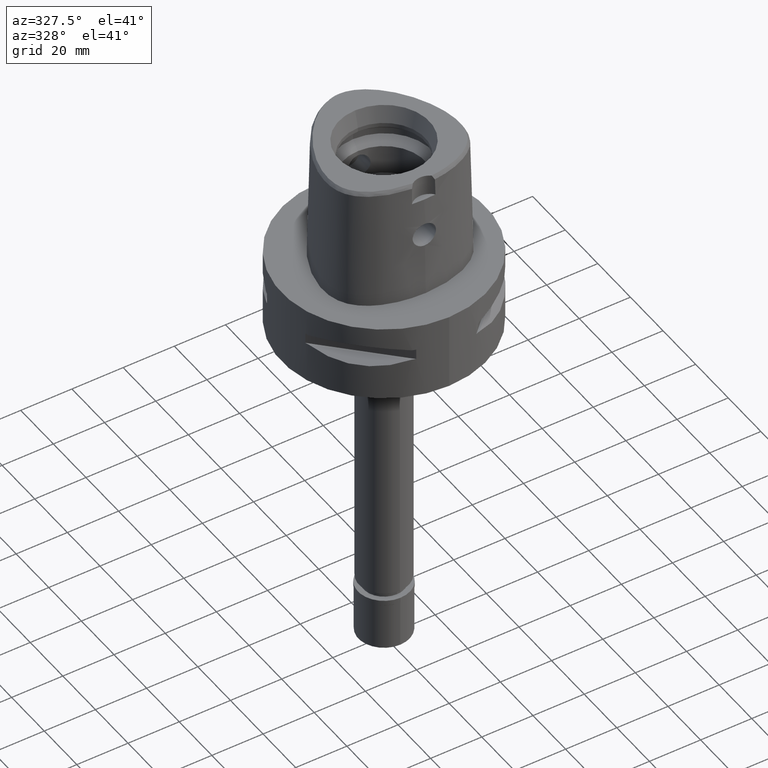
[diagram: clean part render]
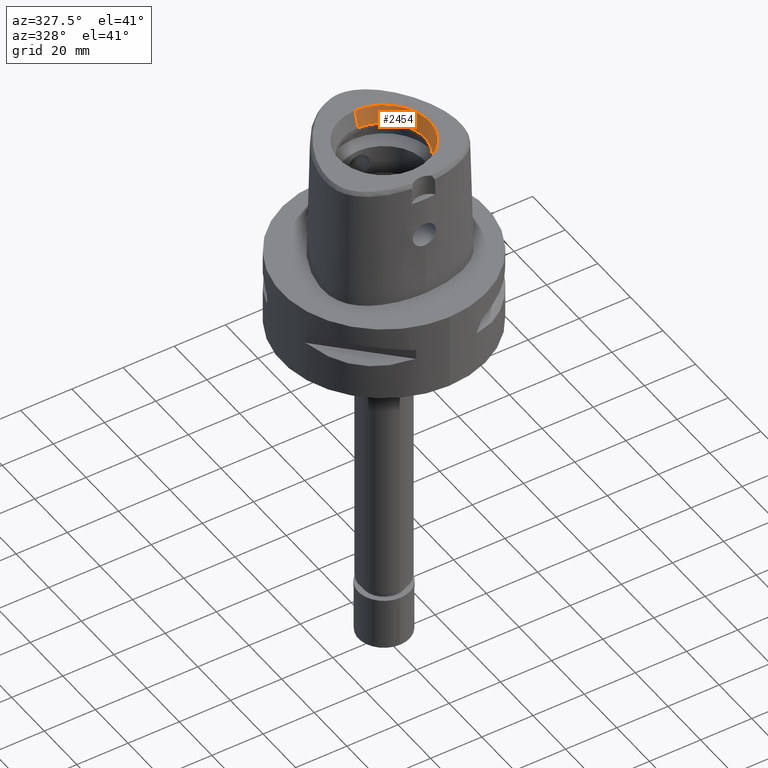
[diagram: same view with one face highlighted and labeled with its STEP entity id]
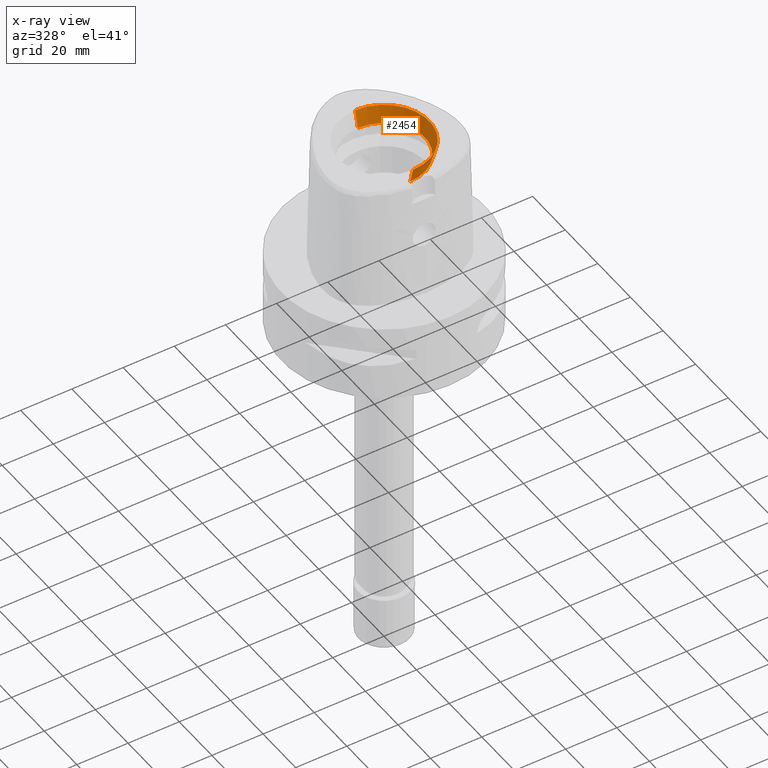
[diagram: x-ray of the same camera — body ghosted, the highlighted face saturated]
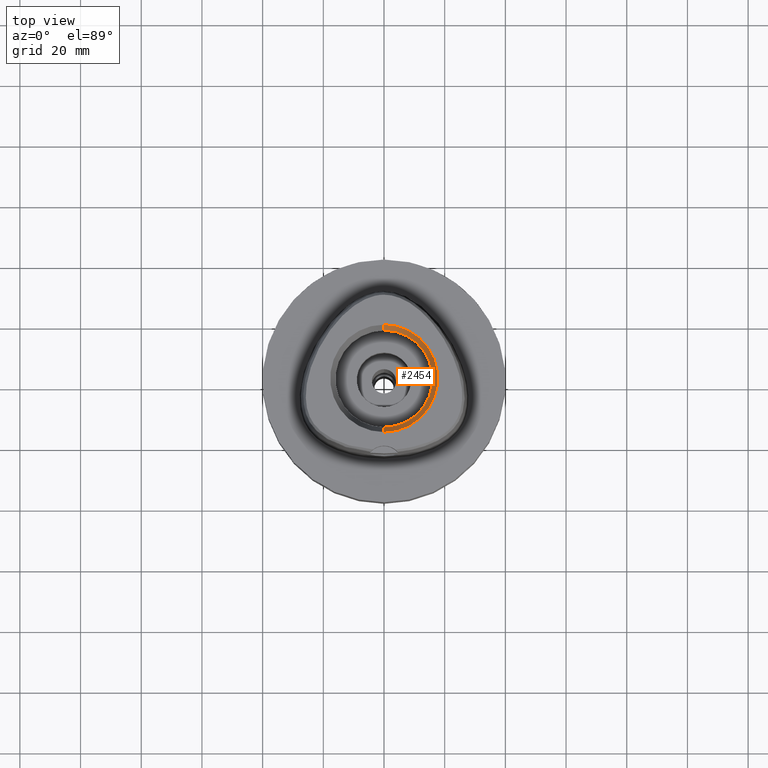
[diagram: same view with one face highlighted and labeled with its STEP entity id]
A machine part, auxiliary view. The second image highlights one B-rep face of the part: STEP entity #2454.
The next image is the same camera in x-ray: the body ghosted, the highlighted face saturated — about 0% of this face is hidden behind the body in this view.
A second angle (top view) of the same face is appended — the face is thin or edge-on in the first view.
In plain terms, the highlighted conical surface has half-angle 15 deg.
Its self-contained STEP definition (entity closure, byte-faithful):
#29 = DIRECTION ( 'NONE',  ( 0.0000000000000000000, 1.000000000000000000, 0.0000000000000000000 ) ) ;
#116 = ORIENTED_EDGE ( 'NONE', *, *, #1946, .F. ) ;
#694 = EDGE_LOOP ( 'NONE', ( #1884, #116, #3375, #3766 ) ) ;
#702 = CONICAL_SURFACE ( 'NONE', #1630, 16.85743741578000154, 0.2617993877991000029 ) ;
#706 = AXIS2_PLACEMENT_3D ( 'NONE', #3064, #1057, #4218 ) ;
#853 = VERTEX_POINT ( 'NONE', #1298 ) ;
#1057 = DIRECTION ( 'NONE',  ( 0.0000000000000000000, 0.0000000000000000000, 1.000000000000000000 ) ) ;
#1217 = EDGE_CURVE ( 'NONE', #2883, #5048, #2359, .T. ) ;
#1298 = CARTESIAN_POINT ( 'NONE',  ( 0.0000000000000000000, -16.00000000000000000, 41.60000000000000142 ) ) ;
#1509 = VECTOR ( 'NONE', #1650, 1000.000000000000000 ) ;
#1530 = EDGE_CURVE ( 'NONE', #3146, #5048, #1961, .T. ) ;
#1577 = DIRECTION ( 'NONE',  ( 0.0000000000000000000, 0.2588190451025869088, 0.9659258262890505486 ) ) ;
#1614 = FACE_OUTER_BOUND ( 'NONE', #694, .T. ) ;
#1630 = AXIS2_PLACEMENT_3D ( 'NONE', #3919, #2729, #29 ) ;
#1650 = DIRECTION ( 'NONE',  ( 0.0000000000000000000, -0.2588190451025869088, 0.9659258262890505486 ) ) ;
#1884 = ORIENTED_EDGE ( 'NONE', *, *, #1217, .F. ) ;
#1946 = EDGE_CURVE ( 'NONE', #853, #2883, #2291, .T. ) ;
#1961 = CIRCLE ( 'NONE', #706, 17.71487483155999954 ) ;
#1985 = CARTESIAN_POINT ( 'NONE',  ( 0.0000000000000000000, 16.00000000000000000, 41.60000000000000142 ) ) ;
#2291 = CIRCLE ( 'NONE', #2635, 16.00000000000000000 ) ;
#2359 = LINE ( 'NONE', #5151, #3192 ) ;
#2454 = ADVANCED_FACE ( 'NONE', ( #1614 ), #702, .F. ) ;
#2635 = AXIS2_PLACEMENT_3D ( 'NONE', #3815, #3013, #4658 ) ;
#2724 = CARTESIAN_POINT ( 'NONE',  ( 0.0000000000000000000, -17.71487483155999954, 48.00000000000000000 ) ) ;
#2729 = DIRECTION ( 'NONE',  ( 0.0000000000000000000, 0.0000000000000000000, 1.000000000000000000 ) ) ;
#2857 = CARTESIAN_POINT ( 'NONE',  ( 0.0000000000000000000, 17.71487483155999954, 48.00000000000000000 ) ) ;
#2883 = VERTEX_POINT ( 'NONE', #1985 ) ;
#3013 = DIRECTION ( 'NONE',  ( 0.0000000000000000000, 0.0000000000000000000, 1.000000000000000000 ) ) ;
#3064 = CARTESIAN_POINT ( 'NONE',  ( 0.0000000000000000000, 0.0000000000000000000, 48.00000000000000000 ) ) ;
#3146 = VERTEX_POINT ( 'NONE', #2724 ) ;
#3192 = VECTOR ( 'NONE', #1577, 1000.000000000000000 ) ;
#3253 = CARTESIAN_POINT ( 'NONE',  ( 0.0000000000000000000, -16.00000000000000000, 41.60000000000000142 ) ) ;
#3375 = ORIENTED_EDGE ( 'NONE', *, *, #4579, .T. ) ;
#3766 = ORIENTED_EDGE ( 'NONE', *, *, #1530, .T. ) ;
#3815 = CARTESIAN_POINT ( 'NONE',  ( 0.0000000000000000000, 0.0000000000000000000, 41.60000000000000142 ) ) ;
#3919 = CARTESIAN_POINT ( 'NONE',  ( 0.0000000000000000000, 0.0000000000000000000, 44.79999999999999716 ) ) ;
#4218 = DIRECTION ( 'NONE',  ( 0.0000000000000000000, -1.000000000000000000, 0.0000000000000000000 ) ) ;
#4375 = LINE ( 'NONE', #3253, #1509 ) ;
#4579 = EDGE_CURVE ( 'NONE', #853, #3146, #4375, .T. ) ;
#4658 = DIRECTION ( 'NONE',  ( 0.0000000000000000000, -1.000000000000000000, 0.0000000000000000000 ) ) ;
#5048 = VERTEX_POINT ( 'NONE', #2857 ) ;
#5151 = CARTESIAN_POINT ( 'NONE',  ( 0.0000000000000000000, 16.00000000000000000, 41.60000000000000142 ) ) ;